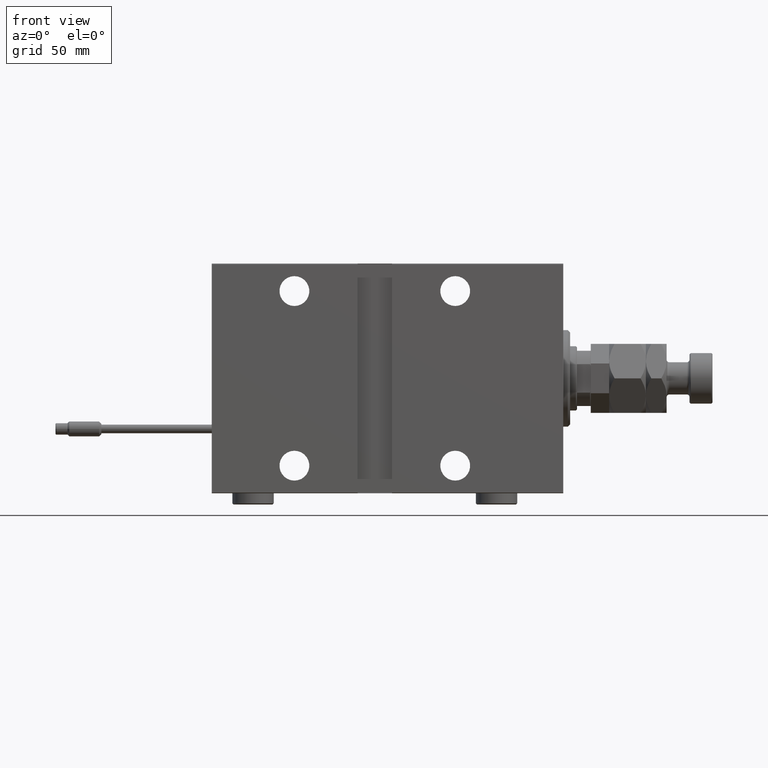
[diagram: clean part render]
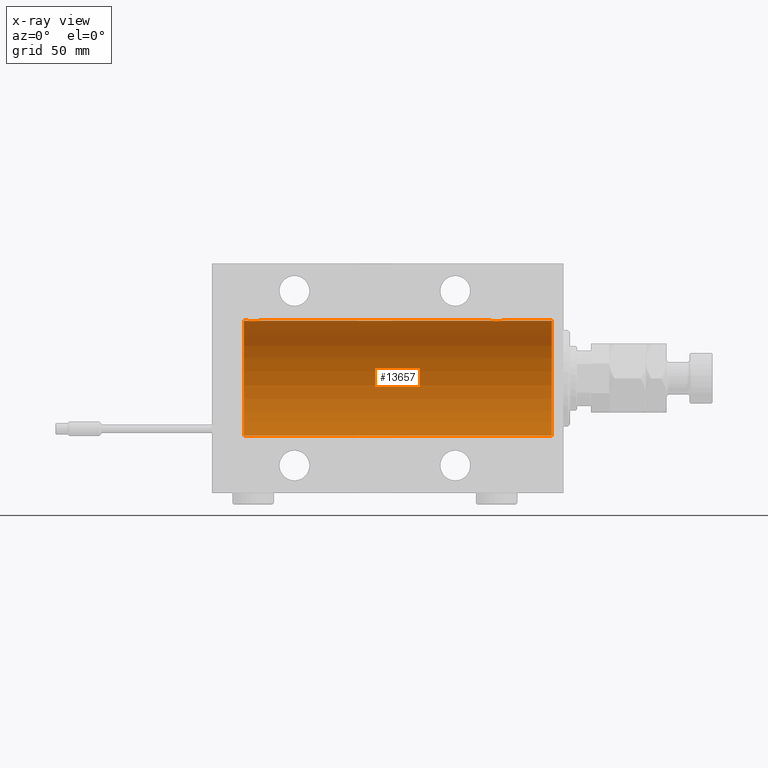
[diagram: x-ray — body ghosted, one internal face saturated and labeled with its STEP entity id]
A machine part, front view, then the same camera in x-ray: the body is ghosted and one INTERNAL B-rep face — a face not visible from any outside direction — is saturated and labeled: STEP entity #13657.
In plain terms, the highlighted cylindrical surface (partial cylindrical patch) has radius 25 mm, axis along (1, 0, -0).
Its self-contained STEP definition (entity closure, byte-faithful):
#60 = EDGE_CURVE ( 'NONE', #41286, #11858, #12927, .T. ) ;
#997 = CARTESIAN_POINT ( 'NONE',  ( 27.01250184165601453, -1.525407911884366863, 24.95379469572361941 ) ) ;
#1568 = DIRECTION ( 'NONE',  ( -1.000000000000000000, -0.000000000000000000, -0.000000000000000000 ) ) ;
#1964 = CARTESIAN_POINT ( 'NONE',  ( 132.5158215994234752, -0.3254210271412208977, 24.99840249400844527 ) ) ;
#2054 = CARTESIAN_POINT ( 'NONE',  ( 5.000000000000004441, 0.000000000000000000, 25.00000000000000000 ) ) ;
#2056 = CARTESIAN_POINT ( 'NONE',  ( 29.32596570039459394, -2.484007091859766092, 24.87630842367763506 ) ) ;
#2328 = CARTESIAN_POINT ( 'NONE',  ( 29.16323589638542302, -2.500125740978195843, 24.87467329022545215 ) ) ;
#2881 = CARTESIAN_POINT ( 'NONE',  ( 30.88185954148645251, -1.653834020452943809, 24.94550385189585029 ) ) ;
#4092 = CARTESIAN_POINT ( 'NONE',  ( 137.5000000000000000, 1.404322005998729010E-15, 25.00000000000000000 ) ) ;
#5836 = CARTESIAN_POINT ( 'NONE',  ( 30.65121133559111755, -1.884161199660622454, 24.92916496727982434 ) ) ;
#6539 = CARTESIAN_POINT ( 'NONE',  ( 132.5798509077907283, -0.6480119923854213981, 24.99212088949391131 ) ) ;
#6635 = CARTESIAN_POINT ( 'NONE',  ( 30.52256774340189338, -1.989585286700249256, 24.92087098724766747 ) ) ;
#6694 = ORIENTED_EDGE ( 'NONE', *, *, #33883, .F. ) ;
#7243 = CARTESIAN_POINT ( 'NONE',  ( 139.0000000000000000, 3.061616997868383043E-15, -25.00000000000000000 ) ) ;
#7475 = DIRECTION ( 'NONE',  ( 0.000000000000000000, 0.000000000000000000, 1.000000000000000000 ) ) ;
#7613 = CARTESIAN_POINT ( 'NONE',  ( 135.3259657003945620, -2.484007091859763872, 24.87630842367762796 ) ) ;
#7810 = AXIS2_PLACEMENT_3D ( 'NONE', #36046, #51964, #7475 ) ;
#7881 = CARTESIAN_POINT ( 'NONE',  ( 133.3461666385066167, -1.881857718844717642, 24.92933960374833546 ) ) ;
#8140 = CARTESIAN_POINT ( 'NONE',  ( 135.1632358963854301, -2.500125740978193178, 24.87467329022544504 ) ) ;
#8559 = CARTESIAN_POINT ( 'NONE',  ( 27.11587617213529100, -1.651251241585102614, 24.94567559498349141 ) ) ;
#10130 = CARTESIAN_POINT ( 'NONE',  ( 26.50000000000000355, -1.940558383798427991E-23, 25.00000000000000000 ) ) ;
#10400 = CARTESIAN_POINT ( 'NONE',  ( 28.67052319885730682, -2.483544361357271857, 24.87635491893501793 ) ) ;
#10515 = EDGE_CURVE ( 'NONE', #48061, #51198, #23532, .T. ) ;
#10666 = CARTESIAN_POINT ( 'NONE',  ( 31.43349355239747567, -0.6588655613945917366, 24.99312727339970053 ) ) ;
#10926 = EDGE_CURVE ( 'NONE', #36962, #48061, #19633, .T. ) ;
#11645 = CARTESIAN_POINT ( 'NONE',  ( 134.3509560983090694, -2.419770561643906248, 24.88263927071751169 ) ) ;
#11858 = VERTEX_POINT ( 'NONE', #30500 ) ;
#11908 = CARTESIAN_POINT ( 'NONE',  ( 134.1921165759419239, -2.371528299825747421, 24.88734287464370709 ) ) ;
#12380 = ORIENTED_EDGE ( 'NONE', *, *, #24655, .T. ) ;
#12927 = B_SPLINE_CURVE_WITH_KNOTS ( 'NONE', 3,
 ( #34409, #50850, #46018, #45483, #25539, #37916, #25012, #997, #8559, #17428, #16890, #47341, #27412, #38714, #22811, #10400, #35203, #2328, #2056, #39791, #47611, #51114, #31163, #6635, #5836, #2881, #51653, #51932, #26327, #10666, #18221, #38972 ),
 .UNSPECIFIED., .F., .F.,
 ( 4, 2, 2, 2, 2, 2, 2, 2, 2, 2, 2, 2, 2, 2, 2, 4 ),
 ( 0.007821024441662254717, 0.008309723826317859385, 0.008798423210973464054, 0.009287122595629068722, 0.009775821980284673390, 0.01026452136494027806, 0.01075322074959588099, 0.01124192013425148566, 0.01173061951890709033, 0.01221931890356269500, 0.01270801828821829967, 0.01319671767287390260, 0.01368541705752950727, 0.01417411644218511194, 0.01466281582684071660, 0.01564021459615192594 ),
 .UNSPECIFIED. ) ;
#13261 = AXIS2_PLACEMENT_3D ( 'NONE', #36323, #19092, #32542 ) ;
#13657 = ADVANCED_FACE ( 'NONE', ( #32282 ), #28255, .F. ) ;
#14340 = CARTESIAN_POINT ( 'NONE',  ( 132.5000000000000000, -0.1631750940176186493, 25.00000000000001066 ) ) ;
#14932 = DIRECTION ( 'NONE',  ( -1.000000000000000000, -0.000000000000000000, -0.000000000000000000 ) ) ;
#15360 = CARTESIAN_POINT ( 'NONE',  ( 137.5000000000000000, 1.404322005998729010E-15, 25.00000000000000000 ) ) ;
#15684 = CARTESIAN_POINT ( 'NONE',  ( 132.8298870971907490, -1.252049606094326695, 24.96900299967627390 ) ) ;
#16208 = CARTESIAN_POINT ( 'NONE',  ( 134.8329350482193831, -2.499872792855079240, 24.87469871246083031 ) ) ;
#16477 = CARTESIAN_POINT ( 'NONE',  ( 135.6456066614862834, -2.420689345803761938, 24.88254961038872892 ) ) ;
#16890 = CARTESIAN_POINT ( 'NONE',  ( 27.47463817756919369, -1.987446652080264720, 24.92104239223420592 ) ) ;
#17428 = CARTESIAN_POINT ( 'NONE',  ( 27.34616663850662377, -1.881857718844717642, 24.92933960374833902 ) ) ;
#18221 = CARTESIAN_POINT ( 'NONE',  ( 31.49999999999997158, -0.3305063766663704494, 25.00000000000000000 ) ) ;
#18389 = CARTESIAN_POINT ( 'NONE',  ( 132.6278403059139634, -0.8058335233485443005, 24.98746277938383287 ) ) ;
#18648 = ORIENTED_EDGE ( 'NONE', *, *, #60, .T. ) ;
#18846 = ORIENTED_EDGE ( 'NONE', *, *, #10926, .T. ) ;
#18993 = LINE ( 'NONE', #51882, #25891 ) ;
#19092 = DIRECTION ( 'NONE',  ( -1.000000000000000000, -0.000000000000000000, -0.000000000000000000 ) ) ;
#19475 = CARTESIAN_POINT ( 'NONE',  ( 137.4334935523974650, -0.6588655613945811895, 24.99312727339969697 ) ) ;
#19633 = LINE ( 'NONE', #7243, #34702 ) ;
#20676 = VECTOR ( 'NONE', #44707, 1000.000000000000000 ) ;
#22756 = B_SPLINE_CURVE_WITH_KNOTS ( 'NONE', 3,
 ( #38883, #14340, #1964, #6539, #18389, #34840, #15684, #23526, #45070, #7881, #32142, #48586, #24322, #11908, #11645, #53151, #16208, #8140, #7613, #16477, #48325, #39957, #28637, #28106, #40222, #44276, #32400, #36703, #35916, #19475, #49370, #4092 ),
 .UNSPECIFIED., .F., .F.,
 ( 4, 2, 2, 2, 2, 2, 2, 2, 2, 2, 2, 2, 2, 2, 2, 4 ),
 ( 0.007821024441662296350, 0.008309723826317906223, 0.008798423210973516095, 0.009287122595629124233, 0.009775821980284732371, 0.01026452136494034224, 0.01075322074959595212, 0.01124192013425156025, 0.01173061951890716839, 0.01221931890356277826, 0.01270801828821838814, 0.01319671767287399627, 0.01368541705752960788, 0.01417411644218521602, 0.01466281582684082589, 0.01564021459615201268 ),
 .UNSPECIFIED. ) ;
#22811 = CARTESIAN_POINT ( 'NONE',  ( 28.35095609830903385, -2.419770561643910245, 24.88263927071751169 ) ) ;
#22857 = LINE ( 'NONE', #25852, #53128 ) ;
#23526 = CARTESIAN_POINT ( 'NONE',  ( 133.0125018416559328, -1.525407911884356205, 24.95379469572361586 ) ) ;
#23532 = CIRCLE ( 'NONE', #49332, 25.00000000000000000 ) ;
#24322 = CARTESIAN_POINT ( 'NONE',  ( 133.8896320349113580, -2.245863995402900049, 24.89899750494197050 ) ) ;
#24655 = EDGE_CURVE ( 'NONE', #31727, #26009, #22756, .T. ) ;
#24690 = CARTESIAN_POINT ( 'NONE',  ( 132.5000000000000000, -1.941505016884693205E-23, 25.00000000000000000 ) ) ;
#25012 = CARTESIAN_POINT ( 'NONE',  ( 26.82988709719075970, -1.252049606094339351, 24.96900299967627390 ) ) ;
#25093 = ORIENTED_EDGE ( 'NONE', *, *, #34450, .F. ) ;
#25539 = CARTESIAN_POINT ( 'NONE',  ( 26.62784030591392437, -0.8058335233485459659, 24.98746277938383287 ) ) ;
#25827 = ORIENTED_EDGE ( 'NONE', *, *, #33508, .F. ) ;
#25852 = CARTESIAN_POINT ( 'NONE',  ( 139.0000000000000000, 0.000000000000000000, 25.00000000000000000 ) ) ;
#25891 = VECTOR ( 'NONE', #14932, 1000.000000000000000 ) ;
#26009 = VERTEX_POINT ( 'NONE', #15360 ) ;
#26291 = EDGE_CURVE ( 'NONE', #41286, #51198, #22857, .T. ) ;
#26327 = CARTESIAN_POINT ( 'NONE',  ( 31.24606379094066000, -1.109818057797419932, 24.97580694515541921 ) ) ;
#27412 = CARTESIAN_POINT ( 'NONE',  ( 27.88963203491136156, -2.245863995402901381, 24.89899750494197050 ) ) ;
#28106 = CARTESIAN_POINT ( 'NONE',  ( 136.5225677434018792, -1.989585286700252809, 24.92087098724766747 ) ) ;
#28255 = CYLINDRICAL_SURFACE ( 'NONE', #13261, 25.00000000000000000 ) ;
#28637 = CARTESIAN_POINT ( 'NONE',  ( 136.2508402392405173, -2.170728182476725276, 24.90574631553724672 ) ) ;
#30500 = CARTESIAN_POINT ( 'NONE',  ( 31.50000000000000000, -6.390602579065537931E-15, 25.00000000000000000 ) ) ;
#31022 = CIRCLE ( 'NONE', #7810, 25.00000000000000000 ) ;
#31163 = CARTESIAN_POINT ( 'NONE',  ( 30.25084023924054932, -2.170728182476723500, 24.90574631553725027 ) ) ;
#31727 = VERTEX_POINT ( 'NONE', #24690 ) ;
#32142 = CARTESIAN_POINT ( 'NONE',  ( 133.4746381775692043, -1.987446652080256948, 24.92104239223420592 ) ) ;
#32282 = FACE_OUTER_BOUND ( 'NONE', #52775, .T. ) ;
#32400 = CARTESIAN_POINT ( 'NONE',  ( 136.9853803371709375, -1.528152964861297258, 24.95362559291378446 ) ) ;
#32542 = DIRECTION ( 'NONE',  ( 0.000000000000000000, 0.000000000000000000, 1.000000000000000000 ) ) ;
#32932 = ORIENTED_EDGE ( 'NONE', *, *, #26291, .F. ) ;
#33508 = EDGE_CURVE ( 'NONE', #36962, #34652, #31022, .T. ) ;
#33676 = ORIENTED_EDGE ( 'NONE', *, *, #10515, .T. ) ;
#33883 = EDGE_CURVE ( 'NONE', #31727, #11858, #36346, .T. ) ;
#34409 = CARTESIAN_POINT ( 'NONE',  ( 26.50000000000000355, -1.940558383798427991E-23, 25.00000000000000000 ) ) ;
#34450 = EDGE_CURVE ( 'NONE', #34652, #26009, #18993, .T. ) ;
#34652 = VERTEX_POINT ( 'NONE', #52945 ) ;
#34702 = VECTOR ( 'NONE', #39312, 1000.000000000000000 ) ;
#34840 = CARTESIAN_POINT ( 'NONE',  ( 132.7523974898044798, -1.106703319666880958, 24.97594585958023217 ) ) ;
#34868 = DIRECTION ( 'NONE',  ( -1.000000000000000000, 0.000000000000000000, 0.000000000000000000 ) ) ;
#35203 = CARTESIAN_POINT ( 'NONE',  ( 28.83293504821939734, -2.499872792855082793, 24.87469871246083031 ) ) ;
#35916 = CARTESIAN_POINT ( 'NONE',  ( 137.2460637909406955, -1.109818057797409718, 24.97580694515542632 ) ) ;
#36046 = CARTESIAN_POINT ( 'NONE',  ( 139.0000000000000000, 0.000000000000000000, 0.000000000000000000 ) ) ;
#36323 = CARTESIAN_POINT ( 'NONE',  ( 139.0000000000000000, 0.000000000000000000, 0.000000000000000000 ) ) ;
#36346 = LINE ( 'NONE', #43920, #20676 ) ;
#36703 = CARTESIAN_POINT ( 'NONE',  ( 137.1682764149395837, -1.255214705003166564, 24.96884293994578385 ) ) ;
#36962 = VERTEX_POINT ( 'NONE', #42698 ) ;
#37916 = CARTESIAN_POINT ( 'NONE',  ( 26.75239748980449050, -1.106703319666882956, 24.97594585958023572 ) ) ;
#38714 = CARTESIAN_POINT ( 'NONE',  ( 28.19211657594194520, -2.371528299825748309, 24.88734287464370709 ) ) ;
#38883 = CARTESIAN_POINT ( 'NONE',  ( 132.5000000000000000, -1.941505016884693205E-23, 25.00000000000000000 ) ) ;
#38972 = CARTESIAN_POINT ( 'NONE',  ( 31.50000000000000000, -6.390602579065537931E-15, 25.00000000000000000 ) ) ;
#39312 = DIRECTION ( 'NONE',  ( -1.000000000000000000, -0.000000000000000000, -0.000000000000000000 ) ) ;
#39722 = CARTESIAN_POINT ( 'NONE',  ( 5.000000000000004441, 0.000000000000000000, 0.000000000000000000 ) ) ;
#39791 = CARTESIAN_POINT ( 'NONE',  ( 29.64560666148631540, -2.420689345803762382, 24.88254961038873958 ) ) ;
#39957 = CARTESIAN_POINT ( 'NONE',  ( 136.1072384583841028, -2.247417070759893942, 24.89885693081946627 ) ) ;
#40222 = CARTESIAN_POINT ( 'NONE',  ( 136.6512113355911708, -1.884161199660621344, 24.92916496727982789 ) ) ;
#41286 = VERTEX_POINT ( 'NONE', #10130 ) ;
#42698 = CARTESIAN_POINT ( 'NONE',  ( 139.0000000000000000, 3.061616997868383043E-15, -25.00000000000000000 ) ) ;
#43920 = CARTESIAN_POINT ( 'NONE',  ( 139.0000000000000000, 0.000000000000000000, 25.00000000000000000 ) ) ;
#44276 = CARTESIAN_POINT ( 'NONE',  ( 136.8818595414864205, -1.653834020452942477, 24.94550385189585029 ) ) ;
#44707 = DIRECTION ( 'NONE',  ( -1.000000000000000000, -0.000000000000000000, -0.000000000000000000 ) ) ;
#45070 = CARTESIAN_POINT ( 'NONE',  ( 133.1158761721353301, -1.651251241585103724, 24.94567559498349141 ) ) ;
#45483 = CARTESIAN_POINT ( 'NONE',  ( 26.57985090779070703, -0.6480119923854221753, 24.99212088949390420 ) ) ;
#46018 = CARTESIAN_POINT ( 'NONE',  ( 26.51582159942343608, -0.3254210271412222300, 24.99840249400844883 ) ) ;
#47259 = CARTESIAN_POINT ( 'NONE',  ( 5.000000000000004441, 3.061616997868383043E-15, -25.00000000000000000 ) ) ;
#47341 = CARTESIAN_POINT ( 'NONE',  ( 27.74616804575498108, -2.169003991399871989, 24.90589728951138326 ) ) ;
#47611 = CARTESIAN_POINT ( 'NONE',  ( 29.80435660916301899, -2.372734907014176553, 24.88722742718433878 ) ) ;
#48061 = VERTEX_POINT ( 'NONE', #47259 ) ;
#48325 = CARTESIAN_POINT ( 'NONE',  ( 135.8043566091630510, -2.372734907014173000, 24.88722742718433878 ) ) ;
#48586 = CARTESIAN_POINT ( 'NONE',  ( 133.7461680457549846, -2.169003991399866216, 24.90589728951138682 ) ) ;
#49332 = AXIS2_PLACEMENT_3D ( 'NONE', #39722, #34868, #51859 ) ;
#49370 = CARTESIAN_POINT ( 'NONE',  ( 137.4999999999999716, -0.3305063766663748903, 24.99999999999999289 ) ) ;
#50850 = CARTESIAN_POINT ( 'NONE',  ( 26.50000000000000711, -0.1631750940176204812, 25.00000000000000711 ) ) ;
#51114 = CARTESIAN_POINT ( 'NONE',  ( 30.10723845838409929, -2.247417070759899271, 24.89885693081946272 ) ) ;
#51198 = VERTEX_POINT ( 'NONE', #2054 ) ;
#51653 = CARTESIAN_POINT ( 'NONE',  ( 30.98538033717094464, -1.528152964861315244, 24.95362559291378801 ) ) ;
#51859 = DIRECTION ( 'NONE',  ( 0.000000000000000000, 0.000000000000000000, 1.000000000000000000 ) ) ;
#51882 = CARTESIAN_POINT ( 'NONE',  ( 139.0000000000000000, 0.000000000000000000, 25.00000000000000000 ) ) ;
#51932 = CARTESIAN_POINT ( 'NONE',  ( 31.16827641493957657, -1.255214705003185438, 24.96884293994578385 ) ) ;
#51964 = DIRECTION ( 'NONE',  ( -1.000000000000000000, 0.000000000000000000, 0.000000000000000000 ) ) ;
#52775 = EDGE_LOOP ( 'NONE', ( #25827, #18846, #33676, #32932, #18648, #6694, #12380, #25093 ) ) ;
#52945 = CARTESIAN_POINT ( 'NONE',  ( 139.0000000000000000, 0.000000000000000000, 25.00000000000000000 ) ) ;
#53128 = VECTOR ( 'NONE', #1568, 1000.000000000000000 ) ;
#53151 = CARTESIAN_POINT ( 'NONE',  ( 134.6705231988572962, -2.483544361357268304, 24.87635491893501793 ) ) ;